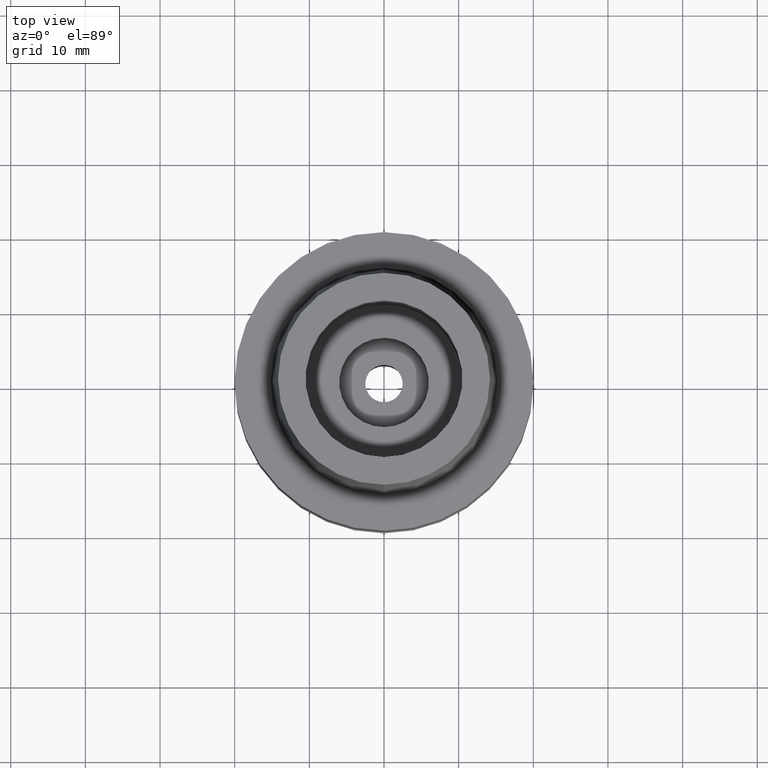
[diagram: clean part render]
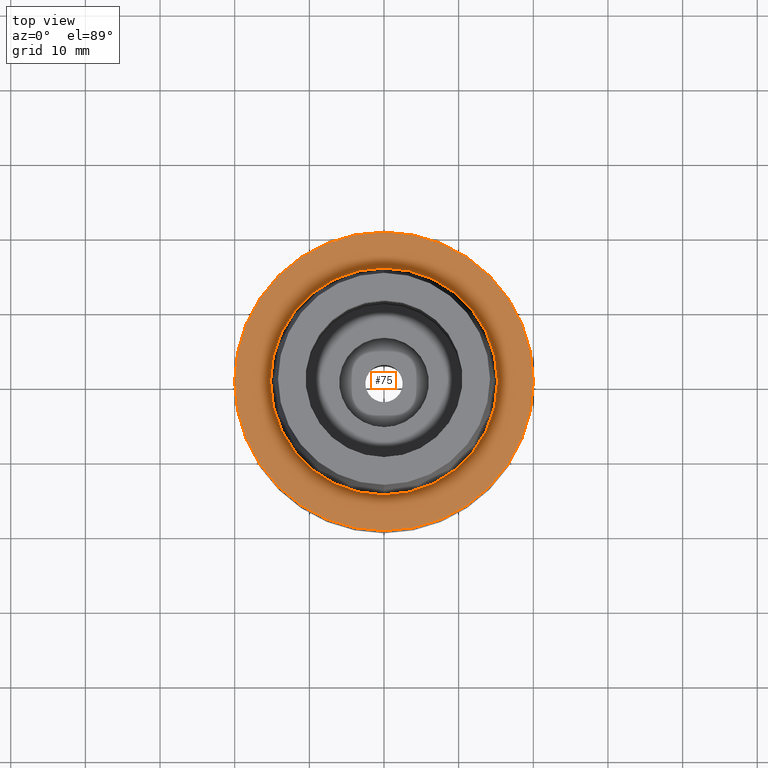
[diagram: same view with one face highlighted and labeled with its STEP entity id]
A machine part, top view. The second image highlights one B-rep face of the part: STEP entity #75.
In plain terms, the highlighted planar face has unit normal (0, 0, 1).
Its self-contained STEP definition (entity closure, byte-faithful):
#10 = AXIS2_PLACEMENT_3D ( 'NONE', #2576, #1770, #2592 ) ;
#59 = DIRECTION ( 'NONE',  ( 1.000000000000000000, 0.0000000000000000000, 0.0000000000000000000 ) ) ;
#75 = ADVANCED_FACE ( 'NONE', ( #878, #1487 ), #1881, .T. ) ;
#116 = CARTESIAN_POINT ( 'NONE',  ( 0.0000000000000000000, 0.0000000000000000000, 6.821210263297000155E-13 ) ) ;
#132 = DIRECTION ( 'NONE',  ( 0.0000000000000000000, 0.0000000000000000000, 1.000000000000000000 ) ) ;
#330 = EDGE_CURVE ( 'NONE', #2124, #1096, #602, .T. ) ;
#382 = VERTEX_POINT ( 'NONE', #2357 ) ;
#524 = DIRECTION ( 'NONE',  ( 0.0000000000000000000, 0.0000000000000000000, 1.000000000000000000 ) ) ;
#590 = CIRCLE ( 'NONE', #857, 15.19999963424000100 ) ;
#602 = CIRCLE ( 'NONE', #2467, 20.00000000000000000 ) ;
#683 = ORIENTED_EDGE ( 'NONE', *, *, #2256, .F. ) ;
#857 = AXIS2_PLACEMENT_3D ( 'NONE', #116, #524, #2598 ) ;
#871 = CARTESIAN_POINT ( 'NONE',  ( 0.0000000000000000000, -20.00000000000000000, 4.973799150320999175E-14 ) ) ;
#878 = FACE_OUTER_BOUND ( 'NONE', #1599, .T. ) ;
#1096 = VERTEX_POINT ( 'NONE', #2164 ) ;
#1119 = CIRCLE ( 'NONE', #10, 20.00000000000000000 ) ;
#1360 = DIRECTION ( 'NONE',  ( 0.0000000000000000000, -1.000000000000000000, 0.0000000000000000000 ) ) ;
#1487 = FACE_BOUND ( 'NONE', #2294, .T. ) ;
#1537 = CARTESIAN_POINT ( 'NONE',  ( 0.0000000000000000000, 0.0000000000000000000, 4.973799150320999175E-14 ) ) ;
#1599 = EDGE_LOOP ( 'NONE', ( #1709, #2017 ) ) ;
#1615 = DIRECTION ( 'NONE',  ( 0.0000000000000000000, -1.000000000000000000, 0.0000000000000000000 ) ) ;
#1696 = ORIENTED_EDGE ( 'NONE', *, *, #2482, .F. ) ;
#1705 = CARTESIAN_POINT ( 'NONE',  ( 0.0000000000000000000, 0.0000000000000000000, 0.0000000000000000000 ) ) ;
#1709 = ORIENTED_EDGE ( 'NONE', *, *, #1878, .F. ) ;
#1770 = DIRECTION ( 'NONE',  ( 0.0000000000000000000, 0.0000000000000000000, -1.000000000000000000 ) ) ;
#1785 = DIRECTION ( 'NONE',  ( 0.0000000000000000000, 0.0000000000000000000, -1.000000000000000000 ) ) ;
#1805 = VERTEX_POINT ( 'NONE', #2145 ) ;
#1878 = EDGE_CURVE ( 'NONE', #1096, #2124, #1119, .T. ) ;
#1881 = PLANE ( 'NONE',  #2375 ) ;
#2017 = ORIENTED_EDGE ( 'NONE', *, *, #330, .F. ) ;
#2124 = VERTEX_POINT ( 'NONE', #871 ) ;
#2145 = CARTESIAN_POINT ( 'NONE',  ( 0.0000000000000000000, 15.19999963424000100, 3.801403636316999971E-13 ) ) ;
#2164 = CARTESIAN_POINT ( 'NONE',  ( 0.0000000000000000000, 20.00000000000000000, 4.973799150320999175E-14 ) ) ;
#2198 = CIRCLE ( 'NONE', #2325, 15.19999963424000100 ) ;
#2256 = EDGE_CURVE ( 'NONE', #1805, #382, #590, .T. ) ;
#2294 = EDGE_LOOP ( 'NONE', ( #683, #1696 ) ) ;
#2325 = AXIS2_PLACEMENT_3D ( 'NONE', #2469, #132, #1615 ) ;
#2357 = CARTESIAN_POINT ( 'NONE',  ( 0.0000000000000000000, -15.19999963424000100, 3.801403636316999971E-13 ) ) ;
#2375 = AXIS2_PLACEMENT_3D ( 'NONE', #1705, #2523, #59 ) ;
#2467 = AXIS2_PLACEMENT_3D ( 'NONE', #1537, #1785, #1360 ) ;
#2469 = CARTESIAN_POINT ( 'NONE',  ( 0.0000000000000000000, 0.0000000000000000000, 6.821210263297000155E-13 ) ) ;
#2482 = EDGE_CURVE ( 'NONE', #382, #1805, #2198, .T. ) ;
#2523 = DIRECTION ( 'NONE',  ( 0.0000000000000000000, 0.0000000000000000000, 1.000000000000000000 ) ) ;
#2576 = CARTESIAN_POINT ( 'NONE',  ( 0.0000000000000000000, 0.0000000000000000000, 4.973799150320999175E-14 ) ) ;
#2592 = DIRECTION ( 'NONE',  ( 0.0000000000000000000, 1.000000000000000000, 0.0000000000000000000 ) ) ;
#2598 = DIRECTION ( 'NONE',  ( 0.0000000000000000000, 1.000000000000000000, 0.0000000000000000000 ) ) ;